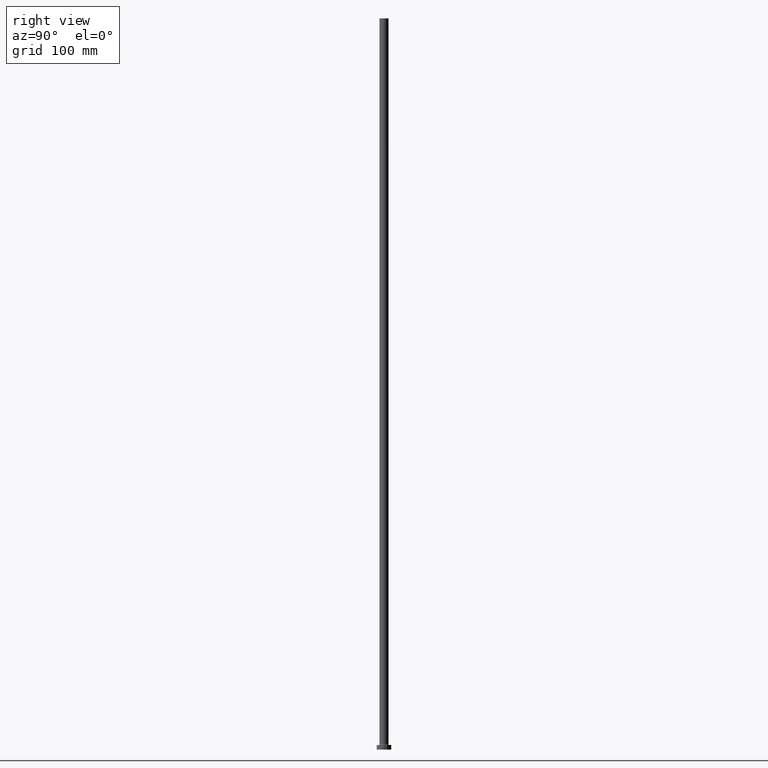
[diagram: clean part render]
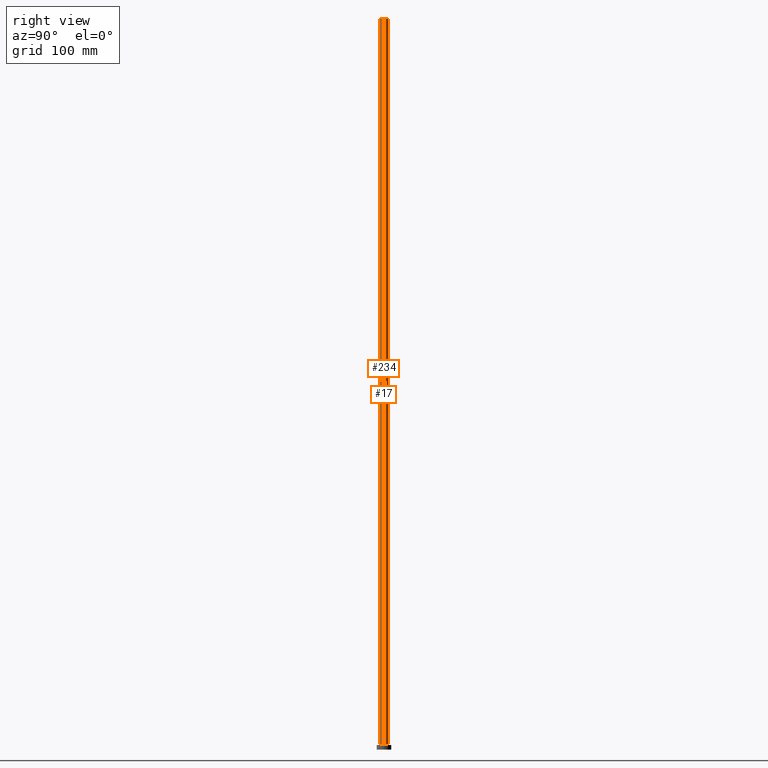
[diagram: same view with one multi-face feature highlighted, each face labeled with its STEP entity id]
A machine part, right view. The highlighted faces form ONE feature: a constant-radius fillet chain: 2 tangent blend faces with common blend radius 5 mm. The faces share edges in the B-rep.
Their STEP definitions:
[1] entity #17 (Cylinder):
#8 = DIRECTION ( 'NONE',  ( 0.000000000000000000, 0.000000000000000000, 1.000000000000000000 ) ) ;
#17 = ADVANCED_FACE ( 'NONE', ( #311 ), #273, .T. ) ;
#21 = DIRECTION ( 'NONE',  ( -0.000000000000000000, -0.000000000000000000, -1.000000000000000000 ) ) ;
#26 = EDGE_CURVE ( 'NONE', #37, #186, #125, .T. ) ;
#37 = VERTEX_POINT ( 'NONE', #250 ) ;
#58 = CARTESIAN_POINT ( 'NONE',  ( 5.000000000000000000, 6.123233995736766282E-16, 5.499999999999949374 ) ) ;
#59 = CIRCLE ( 'NONE', #229, 5.000000000000000000 ) ;
#71 = DIRECTION ( 'NONE',  ( 0.000000000000000000, 0.000000000000000000, 1.000000000000000000 ) ) ;
#76 = EDGE_CURVE ( 'NONE', #37, #436, #319, .T. ) ;
#104 = VECTOR ( 'NONE', #245, 1000.000000000000000 ) ;
#112 = DIRECTION ( 'NONE',  ( 1.000000000000000000, 0.000000000000000000, 0.000000000000000000 ) ) ;
#125 = CIRCLE ( 'NONE', #207, 5.000000000000000000 ) ;
#141 = CARTESIAN_POINT ( 'NONE',  ( 0.000000000000000000, 0.000000000000000000, 800.0000000000000000 ) ) ;
#172 = DIRECTION ( 'NONE',  ( -1.000000000000000000, 0.000000000000000000, 0.000000000000000000 ) ) ;
#186 = VERTEX_POINT ( 'NONE', #351 ) ;
#190 = CARTESIAN_POINT ( 'NONE',  ( -5.000000000000000000, 0.000000000000000000, 800.0000000000000000 ) ) ;
#200 = DIRECTION ( 'NONE',  ( 1.000000000000000000, 0.000000000000000000, 0.000000000000000000 ) ) ;
#201 = ORIENTED_EDGE ( 'NONE', *, *, #216, .T. ) ;
#207 = AXIS2_PLACEMENT_3D ( 'NONE', #141, #8, #112 ) ;
#211 = DIRECTION ( 'NONE',  ( -0.000000000000000000, -0.000000000000000000, -1.000000000000000000 ) ) ;
#216 = EDGE_CURVE ( 'NONE', #436, #348, #59, .T. ) ;
#226 = VECTOR ( 'NONE', #21, 1000.000000000000000 ) ;
#228 = LINE ( 'NONE', #190, #226 ) ;
#229 = AXIS2_PLACEMENT_3D ( 'NONE', #239, #71, #200 ) ;
#233 = ORIENTED_EDGE ( 'NONE', *, *, #444, .F. ) ;
#239 = CARTESIAN_POINT ( 'NONE',  ( 0.000000000000000000, 0.000000000000000000, 5.499999999999949374 ) ) ;
#245 = DIRECTION ( 'NONE',  ( -0.000000000000000000, -0.000000000000000000, -1.000000000000000000 ) ) ;
#249 = EDGE_LOOP ( 'NONE', ( #284, #282, #201, #233 ) ) ;
#250 = CARTESIAN_POINT ( 'NONE',  ( 5.000000000000000000, 6.123233995736766282E-16, 800.0000000000000000 ) ) ;
#273 = CYLINDRICAL_SURFACE ( 'NONE', #300, 5.000000000000000000 ) ;
#282 = ORIENTED_EDGE ( 'NONE', *, *, #76, .T. ) ;
#284 = ORIENTED_EDGE ( 'NONE', *, *, #26, .F. ) ;
#287 = CARTESIAN_POINT ( 'NONE',  ( 5.000000000000000000, 6.123233995736766282E-16, 800.0000000000000000 ) ) ;
#300 = AXIS2_PLACEMENT_3D ( 'NONE', #315, #211, #172 ) ;
#311 = FACE_OUTER_BOUND ( 'NONE', #249, .T. ) ;
#315 = CARTESIAN_POINT ( 'NONE',  ( 0.000000000000000000, 0.000000000000000000, 800.0000000000000000 ) ) ;
#319 = LINE ( 'NONE', #287, #104 ) ;
#348 = VERTEX_POINT ( 'NONE', #419 ) ;
#351 = CARTESIAN_POINT ( 'NONE',  ( -5.000000000000000000, 0.000000000000000000, 800.0000000000000000 ) ) ;
#419 = CARTESIAN_POINT ( 'NONE',  ( -5.000000000000000000, 0.000000000000000000, 5.499999999999949374 ) ) ;
#436 = VERTEX_POINT ( 'NONE', #58 ) ;
#444 = EDGE_CURVE ( 'NONE', #186, #348, #228, .T. ) ;
[2] entity #234 (Cylinder):
#21 = DIRECTION ( 'NONE',  ( -0.000000000000000000, -0.000000000000000000, -1.000000000000000000 ) ) ;
#36 = AXIS2_PLACEMENT_3D ( 'NONE', #138, #283, #387 ) ;
#37 = VERTEX_POINT ( 'NONE', #250 ) ;
#39 = ORIENTED_EDGE ( 'NONE', *, *, #81, .T. ) ;
#58 = CARTESIAN_POINT ( 'NONE',  ( 5.000000000000000000, 6.123233995736766282E-16, 5.499999999999949374 ) ) ;
#76 = EDGE_CURVE ( 'NONE', #37, #436, #319, .T. ) ;
#79 = ORIENTED_EDGE ( 'NONE', *, *, #76, .F. ) ;
#81 = EDGE_CURVE ( 'NONE', #348, #436, #363, .T. ) ;
#104 = VECTOR ( 'NONE', #245, 1000.000000000000000 ) ;
#138 = CARTESIAN_POINT ( 'NONE',  ( 0.000000000000000000, 0.000000000000000000, 800.0000000000000000 ) ) ;
#140 = EDGE_LOOP ( 'NONE', ( #79, #183, #268, #39 ) ) ;
#181 = AXIS2_PLACEMENT_3D ( 'NONE', #254, #335, #223 ) ;
#183 = ORIENTED_EDGE ( 'NONE', *, *, #405, .F. ) ;
#186 = VERTEX_POINT ( 'NONE', #351 ) ;
#190 = CARTESIAN_POINT ( 'NONE',  ( -5.000000000000000000, 0.000000000000000000, 800.0000000000000000 ) ) ;
#223 = DIRECTION ( 'NONE',  ( 1.000000000000000000, 0.000000000000000000, 0.000000000000000000 ) ) ;
#226 = VECTOR ( 'NONE', #21, 1000.000000000000000 ) ;
#228 = LINE ( 'NONE', #190, #226 ) ;
#234 = ADVANCED_FACE ( 'NONE', ( #427 ), #297, .T. ) ;
#245 = DIRECTION ( 'NONE',  ( -0.000000000000000000, -0.000000000000000000, -1.000000000000000000 ) ) ;
#250 = CARTESIAN_POINT ( 'NONE',  ( 5.000000000000000000, 6.123233995736766282E-16, 800.0000000000000000 ) ) ;
#252 = CIRCLE ( 'NONE', #36, 5.000000000000000000 ) ;
#254 = CARTESIAN_POINT ( 'NONE',  ( 0.000000000000000000, 0.000000000000000000, 5.499999999999949374 ) ) ;
#262 = CARTESIAN_POINT ( 'NONE',  ( 0.000000000000000000, 0.000000000000000000, 800.0000000000000000 ) ) ;
#268 = ORIENTED_EDGE ( 'NONE', *, *, #444, .T. ) ;
#283 = DIRECTION ( 'NONE',  ( 0.000000000000000000, 0.000000000000000000, 1.000000000000000000 ) ) ;
#287 = CARTESIAN_POINT ( 'NONE',  ( 5.000000000000000000, 6.123233995736766282E-16, 800.0000000000000000 ) ) ;
#297 = CYLINDRICAL_SURFACE ( 'NONE', #345, 5.000000000000000000 ) ;
#319 = LINE ( 'NONE', #287, #104 ) ;
#335 = DIRECTION ( 'NONE',  ( 0.000000000000000000, 0.000000000000000000, 1.000000000000000000 ) ) ;
#345 = AXIS2_PLACEMENT_3D ( 'NONE', #262, #397, #404 ) ;
#348 = VERTEX_POINT ( 'NONE', #419 ) ;
#351 = CARTESIAN_POINT ( 'NONE',  ( -5.000000000000000000, 0.000000000000000000, 800.0000000000000000 ) ) ;
#363 = CIRCLE ( 'NONE', #181, 5.000000000000000000 ) ;
#387 = DIRECTION ( 'NONE',  ( 1.000000000000000000, 0.000000000000000000, 0.000000000000000000 ) ) ;
#397 = DIRECTION ( 'NONE',  ( -0.000000000000000000, -0.000000000000000000, -1.000000000000000000 ) ) ;
#404 = DIRECTION ( 'NONE',  ( -1.000000000000000000, 0.000000000000000000, 0.000000000000000000 ) ) ;
#405 = EDGE_CURVE ( 'NONE', #186, #37, #252, .T. ) ;
#419 = CARTESIAN_POINT ( 'NONE',  ( -5.000000000000000000, 0.000000000000000000, 5.499999999999949374 ) ) ;
#427 = FACE_OUTER_BOUND ( 'NONE', #140, .T. ) ;
#436 = VERTEX_POINT ( 'NONE', #58 ) ;
#444 = EDGE_CURVE ( 'NONE', #186, #348, #228, .T. ) ;